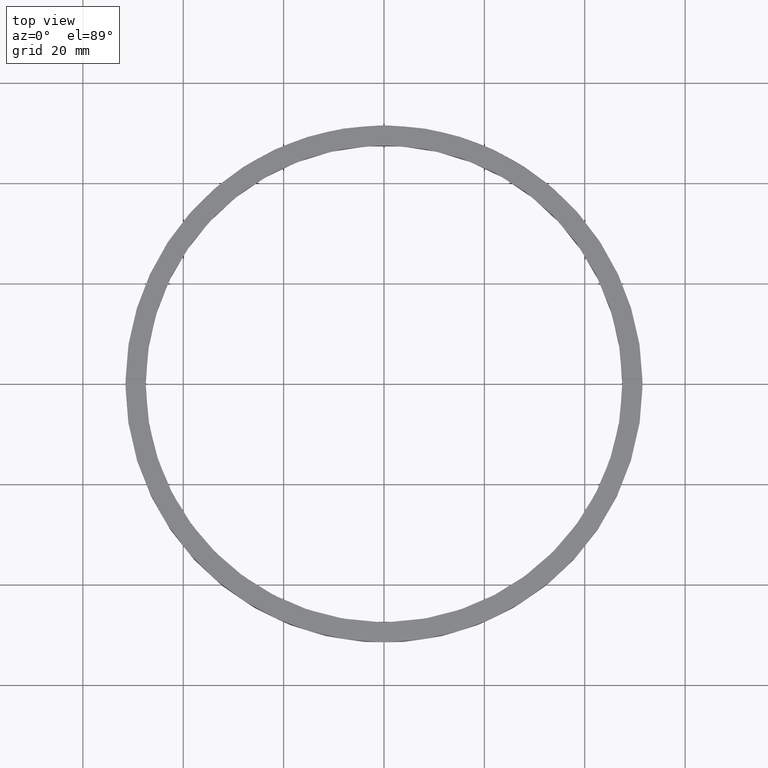
[diagram: clean part render]
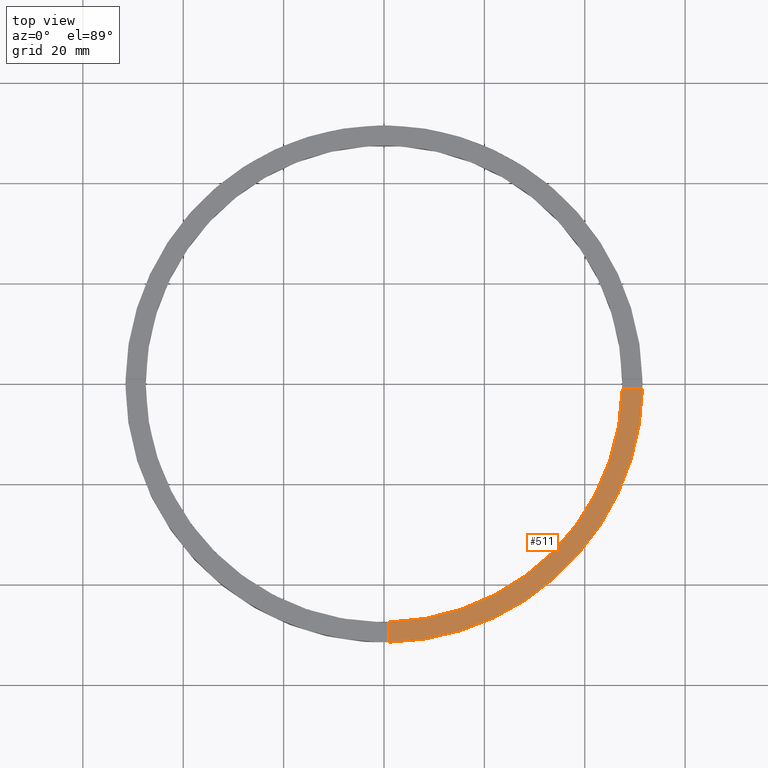
[diagram: same view with one face highlighted and labeled with its STEP entity id]
A machine part, top view. The second image highlights one B-rep face of the part: STEP entity #511.
In plain terms, the highlighted planar face has unit normal (0, 0, 1).
Its self-contained STEP definition (entity closure, byte-faithful):
#11 = AXIS2_PLACEMENT_3D ( 'NONE', #97, #549, #496 ) ;
#35 = LINE ( 'NONE', #281, #65 ) ;
#36 = EDGE_CURVE ( 'NONE', #675, #258, #152, .T. ) ;
#62 = DIRECTION ( 'NONE',  ( 1.000000000000000000, 0.000000000000000000, 0.000000000000000000 ) ) ;
#65 = VECTOR ( 'NONE', #372, 1000.000000000000000 ) ;
#97 = CARTESIAN_POINT ( 'NONE',  ( 0.000000000000000000, 0.000000000000000000, 5.000000000000000000 ) ) ;
#149 = ORIENTED_EDGE ( 'NONE', *, *, #36, .F. ) ;
#152 = LINE ( 'NONE', #172, #430 ) ;
#172 = CARTESIAN_POINT ( 'NONE',  ( 41.49999999999998579, -1.000000000000155431, 5.000000000000000000 ) ) ;
#194 = CARTESIAN_POINT ( 'NONE',  ( 0.000000000000000000, 0.000000000000000000, 5.000000000000000000 ) ) ;
#198 = DIRECTION ( 'NONE',  ( 1.000000000000000000, 0.000000000000000000, -0.000000000000000000 ) ) ;
#207 = ORIENTED_EDGE ( 'NONE', *, *, #561, .T. ) ;
#233 = DIRECTION ( 'NONE',  ( 0.000000000000000000, 0.000000000000000000, 1.000000000000000000 ) ) ;
#258 = VERTEX_POINT ( 'NONE', #550 ) ;
#281 = CARTESIAN_POINT ( 'NONE',  ( 0.9999999999998423483, -41.50000000000017764, 5.000000000000000000 ) ) ;
#302 = DIRECTION ( 'NONE',  ( 0.000000000000000000, 0.000000000000000000, 1.000000000000000000 ) ) ;
#305 = AXIS2_PLACEMENT_3D ( 'NONE', #662, #233, #198 ) ;
#311 = CIRCLE ( 'NONE', #469, 51.50000000000000000 ) ;
#319 = FACE_OUTER_BOUND ( 'NONE', #649, .T. ) ;
#355 = CARTESIAN_POINT ( 'NONE',  ( 0.9999999999998430145, -47.48947251760121446, 5.000000000000000000 ) ) ;
#372 = DIRECTION ( 'NONE',  ( -1.301042606982605074E-16, 1.000000000000000000, -0.000000000000000000 ) ) ;
#377 = CARTESIAN_POINT ( 'NONE',  ( 0.9999999999998436806, -51.49029034682169481, 5.000000000000000000 ) ) ;
#406 = VERTEX_POINT ( 'NONE', #377 ) ;
#430 = VECTOR ( 'NONE', #770, 1000.000000000000000 ) ;
#439 = PLANE ( 'NONE',  #305 ) ;
#469 = AXIS2_PLACEMENT_3D ( 'NONE', #194, #302, #62 ) ;
#495 = VERTEX_POINT ( 'NONE', #355 ) ;
#496 = DIRECTION ( 'NONE',  ( 1.000000000000000000, 0.000000000000000000, 0.000000000000000000 ) ) ;
#500 = EDGE_CURVE ( 'NONE', #495, #675, #574, .T. ) ;
#511 = ADVANCED_FACE ( 'NONE', ( #319 ), #439, .T. ) ;
#521 = EDGE_CURVE ( 'NONE', #406, #495, #35, .T. ) ;
#529 = CARTESIAN_POINT ( 'NONE',  ( 47.48947251760120736, -1.000000000000154987, 5.000000000000000000 ) ) ;
#549 = DIRECTION ( 'NONE',  ( 0.000000000000000000, 0.000000000000000000, 1.000000000000000000 ) ) ;
#550 = CARTESIAN_POINT ( 'NONE',  ( 51.49029034682169481, -1.000000000000154765, 5.000000000000000000 ) ) ;
#561 = EDGE_CURVE ( 'NONE', #406, #258, #311, .T. ) ;
#574 = CIRCLE ( 'NONE', #11, 47.50000000000000711 ) ;
#642 = ORIENTED_EDGE ( 'NONE', *, *, #521, .F. ) ;
#649 = EDGE_LOOP ( 'NONE', ( #149, #717, #642, #207 ) ) ;
#662 = CARTESIAN_POINT ( 'NONE',  ( 0.000000000000000000, 0.000000000000000000, 5.000000000000000000 ) ) ;
#675 = VERTEX_POINT ( 'NONE', #529 ) ;
#717 = ORIENTED_EDGE ( 'NONE', *, *, #500, .F. ) ;
#770 = DIRECTION ( 'NONE',  ( 1.000000000000000000, 6.505213034913025371E-17, 0.000000000000000000 ) ) ;